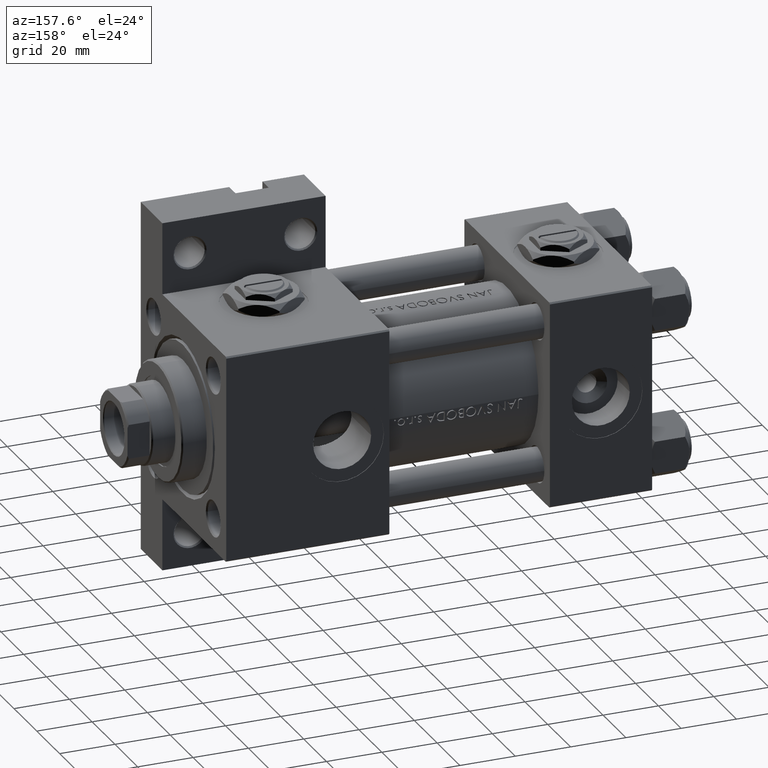
[diagram: clean part render]
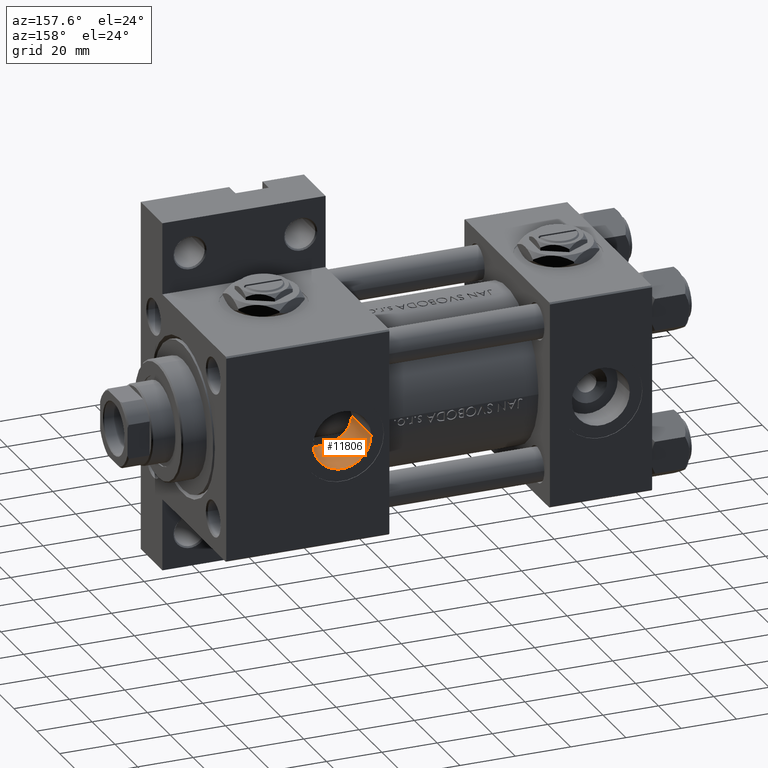
[diagram: same view with one face highlighted and labeled with its STEP entity id]
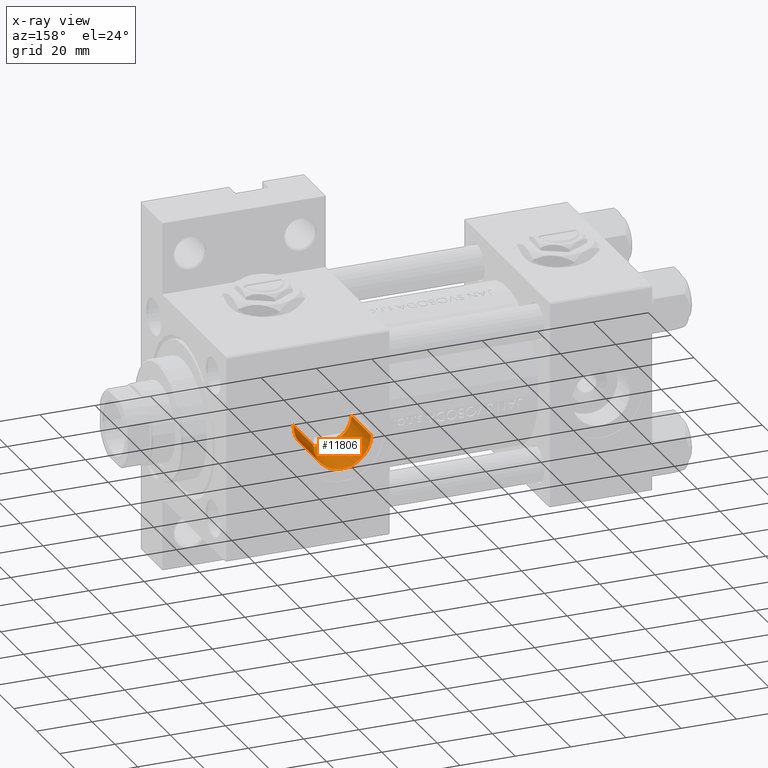
[diagram: x-ray of the same camera — body ghosted, the highlighted face saturated]
A machine part, auxiliary view. The second image highlights one B-rep face of the part: STEP entity #11806.
The next image is the same camera in x-ray: the body ghosted, the highlighted face saturated — about 0% of this face is hidden behind the body in this view.
In plain terms, the highlighted cylindrical surface (edge-blend (fillet) strip) has radius 10.48 mm, axis along (0, 1, 0).
Its self-contained STEP definition (entity closure, byte-faithful):
#4 = CARTESIAN_POINT ( 'NONE',  ( 101.5199999999999960, 0.6967823640873039848, 20.00000000000000000 ) ) ;
#1160 = ORIENTED_EDGE ( 'NONE', *, *, #36841, .T. ) ;
#1546 = CARTESIAN_POINT ( 'NONE',  ( 122.4800000000000040, -7.190646465346682328E-15, 20.00000000000000000 ) ) ;
#1763 = CARTESIAN_POINT ( 'NONE',  ( 112.0000000000000000, -6.938893903907226011E-15, 37.29999999999998295 ) ) ;
#2810 = CARTESIAN_POINT ( 'NONE',  ( 119.6391919336807490, 7.182330360178248441, 18.70231315409300166 ) ) ;
#3298 = CARTESIAN_POINT ( 'NONE',  ( 110.6101074716387132, 10.39333618499135170, 17.17003674431503768 ) ) ;
#4032 = CARTESIAN_POINT ( 'NONE',  ( 101.5888000338872246, 1.387573566795225588, 19.96456553337858963 ) ) ;
#6585 = CARTESIAN_POINT ( 'NONE',  ( 118.9148223769584263, 7.882226429758155462, 18.42550904926250865 ) ) ;
#7586 = CARTESIAN_POINT ( 'NONE',  ( 107.3143824369412300, 9.399358022566021376, 17.72067190218963262 ) ) ;
#8065 = CARTESIAN_POINT ( 'NONE',  ( 108.5926450932739726, 9.916634395335904628, 17.44223718521384470 ) ) ;
#8089 = VECTOR ( 'NONE', #37644, 1000.000000000000000 ) ;
#9879 = CARTESIAN_POINT ( 'NONE',  ( 122.2036093302260440, 2.415912636154253779, 19.86000321358038434 ) ) ;
#10224 = EDGE_CURVE ( 'NONE', #40400, #34852, #17659, .T. ) ;
#10374 = CARTESIAN_POINT ( 'NONE',  ( 120.2958033306398562, 6.412812401408073626, 18.97310258086861978 ) ) ;
#10868 = CARTESIAN_POINT ( 'NONE',  ( 109.2530065807623885, 10.11947292826133982, 17.32862250975704299 ) ) ;
#11107 = CARTESIAN_POINT ( 'NONE',  ( 114.4155333511632762, 10.20370056431729822, 17.28034809007780481 ) ) ;
#11806 = ADVANCED_FACE ( 'NONE', ( #42811 ), #45836, .F. ) ;
#13109 = EDGE_CURVE ( 'NONE', #34852, #35310, #36709, .T. ) ;
#14140 = CARTESIAN_POINT ( 'NONE',  ( 122.4800000000000324, 0.7059292743811348414, 20.00000000000000355 ) ) ;
#14384 = CARTESIAN_POINT ( 'NONE',  ( 117.2749136096344387, 9.081045908839904257, 17.88365106881857258 ) ) ;
#14426 = VECTOR ( 'NONE', #48261, 1000.000000000000000 ) ;
#15359 = CARTESIAN_POINT ( 'NONE',  ( 116.6807667189036692, 9.401270326070079619, 17.71963709424767686 ) ) ;
#16608 = DIRECTION ( 'NONE',  ( 1.000000000000000000, 0.000000000000000000, 0.000000000000000000 ) ) ;
#17155 = ORIENTED_EDGE ( 'NONE', *, *, #10224, .F. ) ;
#17659 = B_SPLINE_CURVE_WITH_KNOTS ( 'NONE', 3,
 ( #28961, #14140, #48546, #9879, #25208, #29213, #44536, #25455, #40755, #44781, #10374, #25692, #2810, #40998, #6585, #33476, #48786, #14384, #15359, #23153, #49031, #26915, #11107, #19130, #19368, #30206, #38688, #3298, #41985, #42471, #10868, #8065, #38442, #7586, #26425, #22916, #22667, #29959, #27156, #30935, #41732, #30689, #42235, #26184, #45999, #46242, #18637, #4032, #4, #45516 ),
 .UNSPECIFIED., .F., .F.,
 ( 4, 2, 2, 2, 2, 2, 2, 2, 2, 2, 2, 2, 2, 2, 2, 2, 2, 2, 2, 2, 2, 2, 2, 2, 4 ),
 ( 5.571798435301822309E-19, 0.002085371848011730207, 0.003128057772017594010, 0.004170743696023458680, 0.006256115544035202765, 0.007298801468041075241, 0.008341487392046946850, 0.009384173316052818459, 0.01042685924005869180, 0.01251223108807047145, 0.01355491701207637775, 0.01459760293608228579, 0.01668297478409406023, 0.01772566070809996480, 0.01876834663210586937, 0.01981103255611177394, 0.02085371848011768198, 0.02293909032812953275, 0.02398177625213545466, 0.02502446217614138352, 0.02710983402415320653, 0.02919520587216503302, 0.03023789179617094453, 0.03128057772017685950, 0.03336594956818868252 ),
 .UNSPECIFIED. ) ;
#18637 = CARTESIAN_POINT ( 'NONE',  ( 101.7960190050290663, 2.414784284089438682, 19.86018829921812312 ) ) ;
#19130 = CARTESIAN_POINT ( 'NONE',  ( 113.3972957807850150, 10.40949522351232481, 17.16118746953340590 ) ) ;
#19183 = AXIS2_PLACEMENT_3D ( 'NONE', #34785, #35265, #23238 ) ;
#19368 = CARTESIAN_POINT ( 'NONE',  ( 112.7089960201328012, 10.47927568230745621, 17.11915951098716349 ) ) ;
#22283 = AXIS2_PLACEMENT_3D ( 'NONE', #1763, #36435, #16608 ) ;
#22350 = CARTESIAN_POINT ( 'NONE',  ( 122.4800000000000040, -6.938893903907226011E-15, -29.64191626734007201 ) ) ;
#22667 = CARTESIAN_POINT ( 'NONE',  ( 105.6001807580774994, 8.305855936120721594, 18.24346718738526008 ) ) ;
#22916 = CARTESIAN_POINT ( 'NONE',  ( 105.8741008516524431, 8.509911541881285402, 18.15140651454457199 ) ) ;
#23153 = CARTESIAN_POINT ( 'NONE',  ( 115.7394704517087689, 9.796046444661111963, 17.50860180445792835 ) ) ;
#23196 = VERTEX_POINT ( 'NONE', #29423 ) ;
#23238 = DIRECTION ( 'NONE',  ( 1.000000000000000000, 0.000000000000000000, 0.000000000000000000 ) ) ;
#25208 = CARTESIAN_POINT ( 'NONE',  ( 122.1182143621888372, 2.751972056903260633, 19.81723222319772049 ) ) ;
#25375 = ORIENTED_EDGE ( 'NONE', *, *, #13109, .F. ) ;
#25455 = CARTESIAN_POINT ( 'NONE',  ( 121.3955262495358483, 4.693145010131117623, 19.46599966668495085 ) ) ;
#25692 = CARTESIAN_POINT ( 'NONE',  ( 119.8655926310704558, 6.933755718105404142, 18.79375335859577945 ) ) ;
#25786 = ORIENTED_EDGE ( 'NONE', *, *, #34455, .T. ) ;
#26184 = CARTESIAN_POINT ( 'NONE',  ( 102.2036804305014215, 3.738835649269058869, 19.65872255796547563 ) ) ;
#26425 = CARTESIAN_POINT ( 'NONE',  ( 106.7179426654414982, 9.076872237721250514, 17.88571804596835335 ) ) ;
#26915 = CARTESIAN_POINT ( 'NONE',  ( 114.7546741466190525, 10.11742845580953443, 17.32978771997536782 ) ) ;
#27156 = CARTESIAN_POINT ( 'NONE',  ( 104.8284845884556091, 7.649352566110289686, 18.52110086963149982 ) ) ;
#28961 = CARTESIAN_POINT ( 'NONE',  ( 122.4800000000000040, -7.190646465346682328E-15, 20.00000000000000000 ) ) ;
#29213 = CARTESIAN_POINT ( 'NONE',  ( 121.9132609391531190, 3.417436119877224510, 19.71594434548825703 ) ) ;
#29423 = CARTESIAN_POINT ( 'NONE',  ( 122.4800000000000040, -6.938893903907226011E-15, 37.29999999999998295 ) ) ;
#29959 = CARTESIAN_POINT ( 'NONE',  ( 105.0776452418840563, 7.875654497479076532, 18.42825589621287818 ) ) ;
#30206 = CARTESIAN_POINT ( 'NONE',  ( 111.6616848209565944, 10.48035382919965564, 17.11851820641091493 ) ) ;
#30689 = CARTESIAN_POINT ( 'NONE',  ( 102.9225563679261626, 5.281939122741833970, 19.31671541206548071 ) ) ;
#30935 = CARTESIAN_POINT ( 'NONE',  ( 104.1158008868667935, 6.936938536499983599, 18.79736706481581265 ) ) ;
#31307 = EDGE_LOOP ( 'NONE', ( #25375, #17155, #1160, #25786 ) ) ;
#32938 = CARTESIAN_POINT ( 'NONE',  ( 101.5199999999999960, -5.655464058400799734E-15, -29.64191626734007201 ) ) ;
#33476 = CARTESIAN_POINT ( 'NONE',  ( 118.3934426630466419, 8.310725173485071338, 18.24129753657673092 ) ) ;
#34455 = EDGE_CURVE ( 'NONE', #23196, #35310, #37499, .T. ) ;
#34785 = CARTESIAN_POINT ( 'NONE',  ( 112.0000000000000000, -6.938893903907226011E-15, -29.64191626734007201 ) ) ;
#34852 = VERTEX_POINT ( 'NONE', #44177 ) ;
#35265 = DIRECTION ( 'NONE',  ( -0.000000000000000000, -0.000000000000000000, 1.000000000000000000 ) ) ;
#35310 = VERTEX_POINT ( 'NONE', #38000 ) ;
#36435 = DIRECTION ( 'NONE',  ( 0.000000000000000000, 0.000000000000000000, 1.000000000000000000 ) ) ;
#36709 = LINE ( 'NONE', #32938, #14426 ) ;
#36841 = EDGE_CURVE ( 'NONE', #40400, #23196, #44949, .T. ) ;
#37499 = CIRCLE ( 'NONE', #22283, 10.48000000000000398 ) ;
#37644 = DIRECTION ( 'NONE',  ( -0.000000000000000000, -0.000000000000000000, 1.000000000000000000 ) ) ;
#38000 = CARTESIAN_POINT ( 'NONE',  ( 101.5199999999999960, -5.655464058400800522E-15, 37.29999999999998295 ) ) ;
#38442 = CARTESIAN_POINT ( 'NONE',  ( 108.2653329998981917, 9.797999703728088150, 17.50755135371405657 ) ) ;
#38688 = CARTESIAN_POINT ( 'NONE',  ( 111.3076056654028037, 10.46297416512450518, 17.12889126461535128 ) ) ;
#40400 = VERTEX_POINT ( 'NONE', #1546 ) ;
#40755 = CARTESIAN_POINT ( 'NONE',  ( 121.0718566577812396, 5.291159677655632443, 19.31417435353765555 ) ) ;
#40998 = CARTESIAN_POINT ( 'NONE',  ( 119.1638061275311031, 7.656566108217145228, 18.51819379702216040 ) ) ;
#41732 = CARTESIAN_POINT ( 'NONE',  ( 103.6866561539506222, 6.417723730979734142, 18.97855006749640339 ) ) ;
#41985 = CARTESIAN_POINT ( 'NONE',  ( 110.2662192767983527, 10.34138286985941235, 17.20062314295812556 ) ) ;
#42235 = CARTESIAN_POINT ( 'NONE',  ( 102.5995025140081651, 4.682576587287051950, 19.46836060444810101 ) ) ;
#42471 = CARTESIAN_POINT ( 'NONE',  ( 109.5876685271199165, 10.20445256356849129, 17.27991583748154980 ) ) ;
#42811 = FACE_OUTER_BOUND ( 'NONE', #31307, .T. ) ;
#44177 = CARTESIAN_POINT ( 'NONE',  ( 101.5199999999999960, 2.510525976792046767E-15, 20.00000000000000000 ) ) ;
#44536 = CARTESIAN_POINT ( 'NONE',  ( 121.7944253755054120, 3.743983501781741552, 19.65779689679483866 ) ) ;
#44781 = CARTESIAN_POINT ( 'NONE',  ( 120.5005384750003969, 6.139005141183929481, 19.06143105420016681 ) ) ;
#44949 = LINE ( 'NONE', #22350, #8089 ) ;
#45516 = CARTESIAN_POINT ( 'NONE',  ( 101.5199999999999960, 2.510525976792046767E-15, 20.00000000000000000 ) ) ;
#45836 = CYLINDRICAL_SURFACE ( 'NONE', #19183, 10.48000000000000398 ) ;
#45999 = CARTESIAN_POINT ( 'NONE',  ( 102.0865202055852734, 3.416556018164093267, 19.71605419410972715 ) ) ;
#46242 = CARTESIAN_POINT ( 'NONE',  ( 101.8828930166380218, 2.755736371050360400, 19.81668327404118557 ) ) ;
#48261 = DIRECTION ( 'NONE',  ( -0.000000000000000000, -0.000000000000000000, 1.000000000000000000 ) ) ;
#48546 = CARTESIAN_POINT ( 'NONE',  ( 122.4094207927715132, 1.397808168755525937, 19.96366514614362941 ) ) ;
#48786 = CARTESIAN_POINT ( 'NONE',  ( 118.1195262949233751, 8.514500867498457026, 18.14931045191755032 ) ) ;
#49031 = CARTESIAN_POINT ( 'NONE',  ( 115.4172955847990210, 9.913257743980491199, 17.44410793545391414 ) ) ;